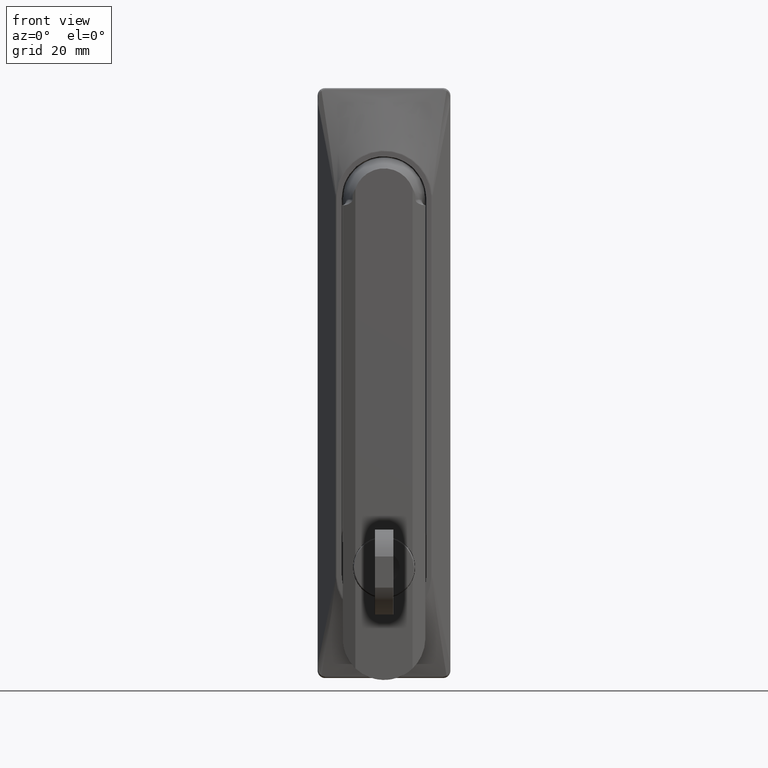
[diagram: clean part render]
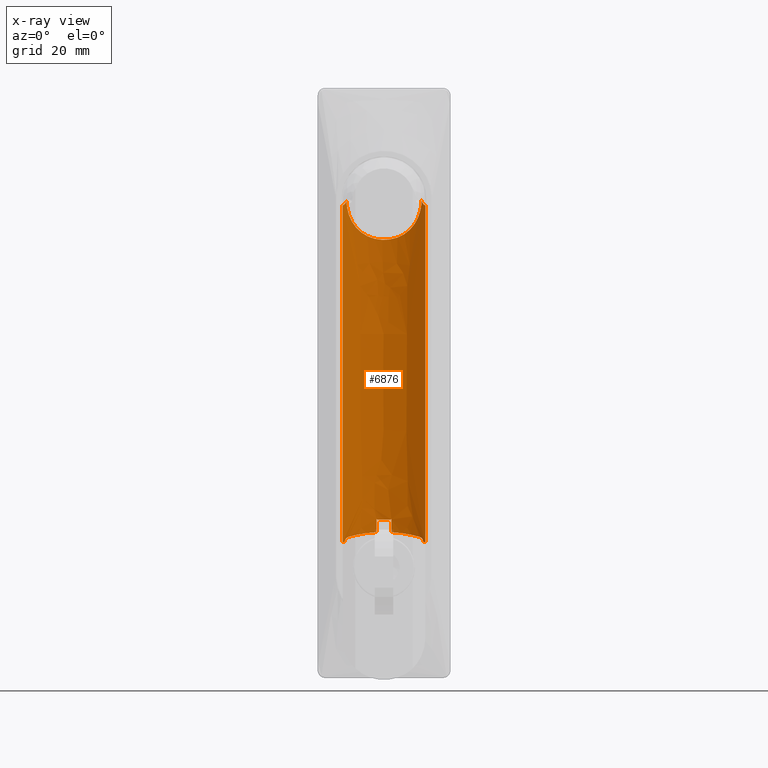
[diagram: x-ray — body ghosted, one internal face saturated and labeled with its STEP entity id]
A machine part, front view, then the same camera in x-ray: the body is ghosted and one INTERNAL B-rep face — a face not visible from any outside direction — is saturated and labeled: STEP entity #6876.
In plain terms, the highlighted face is a freeform B-spline surface patch.
Its self-contained STEP definition (entity closure, byte-faithful):
#5502=CARTESIAN_POINT('',(10.646672563056081,-8.406012683906479,-93.157983944105908));
#5503=VERTEX_POINT('',#5502);
#5517=CARTESIAN_POINT('',(11.209949728346800,-9.000000427477080,-93.157983944105908));
#5518=VERTEX_POINT('',#5517);
#5519=CARTESIAN_POINT('',(10.646672563056100,-8.406012683906461,-93.157983944105908));
#5520=CARTESIAN_POINT('',(10.936382416614419,-8.695352588670811,-93.157983944105908));
#5521=CARTESIAN_POINT('',(11.209949728346819,-9.000000427477062,-93.157983944105908));
#5529=(BOUNDED_CURVE()B_SPLINE_CURVE(2,(#5519,#5520,#5521),.UNSPECIFIED.,.F.,.U.)CURVE()GEOMETRIC_REPRESENTATION_ITEM()QUASI_UNIFORM_CURVE()RATIONAL_B_SPLINE_CURVE((1.0,0.999630921800948,1.0))REPRESENTATION_ITEM(''));
#5530=EDGE_CURVE('',#5503,#5518,#5529,.T.);
#5687=CARTESIAN_POINT('',(2.0,-4.133337162966836,-86.973774293476396));
#5688=VERTEX_POINT('',#5687);
#5689=CARTESIAN_POINT('',(2.0,-4.133337162966815,-90.456228789069797));
#5690=VERTEX_POINT('',#5689);
#5691=CARTESIAN_POINT('',(2.0,-4.133337162966836,-86.973774293476396));
#5692=CARTESIAN_POINT('',(2.0,-4.133337162966815,-90.456228789069797));
#5693=QUASI_UNIFORM_CURVE('',1,(#5691,#5692),.UNSPECIFIED.,.F.,.U.);
#5694=EDGE_CURVE('',#5688,#5690,#5693,.T.);
#5734=CARTESIAN_POINT('',(-2.0,-4.133337162966840,-86.973774293476396));
#5735=VERTEX_POINT('',#5734);
#5741=CARTESIAN_POINT('',(1.999999999999999,-4.133337162966783,-86.973774293476595));
#5742=CARTESIAN_POINT('',(-4.302157E-013,-3.865473339210489,-87.241638117232881));
#5743=CARTESIAN_POINT('',(-2.000000000000850,-4.133337162966907,-86.973774293476467));
#5751=(BOUNDED_CURVE()B_SPLINE_CURVE(2,(#5741,#5742,#5743),.UNSPECIFIED.,.F.,.U.)CURVE()GEOMETRIC_REPRESENTATION_ITEM()QUASI_UNIFORM_CURVE()RATIONAL_B_SPLINE_CURVE((1.0,0.991150006863682,1.0))REPRESENTATION_ITEM(''));
#5752=EDGE_CURVE('',#5688,#5735,#5751,.T.);
#5764=CARTESIAN_POINT('',(-2.0,-4.133337162966821,-90.456228789069797));
#5765=VERTEX_POINT('',#5764);
#5791=CARTESIAN_POINT('',(-2.0,-4.133337162966840,-86.973774293476396));
#5792=CARTESIAN_POINT('',(-2.0,-4.133337162966821,-90.456228789069797));
#5793=QUASI_UNIFORM_CURVE('',1,(#5791,#5792),.UNSPECIFIED.,.F.,.U.);
#5794=EDGE_CURVE('',#5735,#5765,#5793,.T.);
#6080=CARTESIAN_POINT('',(-9.572724272137590,-7.432026659646449,-91.709681736979405));
#6081=VERTEX_POINT('',#6080);
#6096=CARTESIAN_POINT('',(-10.646672563056081,-8.406012683906530,-93.157983944105908));
#6097=VERTEX_POINT('',#6096);
#6111=CARTESIAN_POINT('',(-9.572724272137590,-7.432026659646449,-91.709681736979405));
#6112=CARTESIAN_POINT('',(-9.642574257090919,-7.489499502132555,-91.729135692197488));
#6113=CARTESIAN_POINT('',(-9.710433140517905,-7.546388259054503,-91.753786123624906));
#6114=CARTESIAN_POINT('',(-9.842332302200081,-7.658873791282828,-91.813359810754463));
#6115=CARTESIAN_POINT('',(-9.906373329939012,-7.714472331615069,-91.848278350748274));
#6116=CARTESIAN_POINT('',(-9.999522073712981,-7.796666565583481,-91.908881642522118));
#6117=CARTESIAN_POINT('',(-10.030173907579369,-7.823943530006475,-91.930535704242374));
#6118=CARTESIAN_POINT('',(-10.089783217576230,-7.877410777775689,-91.976234856918623));
#6119=CARTESIAN_POINT('',(-10.118793690891300,-7.903646413156397,-92.000303206796119));
#6120=CARTESIAN_POINT('',(-10.203427760031699,-7.980757515101103,-92.076270198849954));
#6121=CARTESIAN_POINT('',(-10.256674767532390,-8.030057386345881,-92.131892480882570));
#6122=CARTESIAN_POINT('',(-10.331399881034990,-8.100138130270416,-92.223797801952202));
#6123=CARTESIAN_POINT('',(-10.355446073112820,-8.122849134587794,-92.255853321070035));
#6124=CARTESIAN_POINT('',(-10.401675487685971,-8.166780419150163,-92.323112235518181));
#6125=CARTESIAN_POINT('',(-10.423629782048961,-8.187783400012469,-92.357997553978478));
#6126=CARTESIAN_POINT('',(-10.485472183504751,-8.247265463385306,-92.465953898360610));
#6127=CARTESIAN_POINT('',(-10.521571479999441,-8.282437570625040,-92.542546947527285));
#6128=CARTESIAN_POINT('',(-10.566902126400670,-8.326914998461550,-92.665654549582726));
#6129=CARTESIAN_POINT('',(-10.580557182295919,-8.340376017556942,-92.708242181311093));
#6130=CARTESIAN_POINT('',(-10.604056409819570,-8.363607669040180,-92.794448663172872));
#6131=CARTESIAN_POINT('',(-10.623922246929830,-8.383322264847687,-92.882089224307848));
#6132=CARTESIAN_POINT('',(-10.636255088356060,-8.395617052452129,-92.972728574912708));
#6133=CARTESIAN_POINT('',(-10.644572404670059,-8.403914002445362,-93.064974969852685));
#6134=CARTESIAN_POINT('',(-10.646672563056100,-8.406012683906427,-93.111428666005395));
#6135=CARTESIAN_POINT('',(-10.646672563056100,-8.406012683906431,-93.157983944105908));
#6136=B_SPLINE_CURVE_WITH_KNOTS('',3,(#6111,#6112,#6113,#6114,#6115,#6116,#6117,#6118,#6119,#6120,#6121,#6122,#6123,#6124,#6125,#6126,#6127,#6128,#6129,#6130,#6131,#6132,#6133,#6134,#6135),.UNSPECIFIED.,.F.,.U.,(4,2,2,2,2,2,2,2,2,2,1,2,4),(0.0,0.125000000000007,0.250000000000014,0.312500000000014,0.375000000000013,0.500000000000002,0.562500000000002,0.625000000000002,0.750000000000002,0.812500000000001,0.875000000000001,0.937500000000000,1.0),.UNSPECIFIED.);
#6137=EDGE_CURVE('',#6081,#6097,#6136,.T.);
#6223=CARTESIAN_POINT('',(-2.0,-4.133337162966821,-90.456228789069797));
#6224=CARTESIAN_POINT('',(-2.703640394317769,-4.227577066252477,-90.495819909426658));
#6225=CARTESIAN_POINT('',(-3.391156151284350,-4.370010359103173,-90.555419516459651));
#6226=CARTESIAN_POINT('',(-4.735819738944318,-4.746632434937009,-90.709857278432793));
#6227=CARTESIAN_POINT('',(-5.392961353779724,-4.980834724859495,-90.804715643479184));
#6228=CARTESIAN_POINT('',(-6.195505255898476,-5.331680391506422,-90.942641752571689));
#6229=CARTESIAN_POINT('',(-6.355097836841869,-5.404797984662142,-90.971205592779953));
#6230=CARTESIAN_POINT('',(-6.670227840667325,-5.555860858664102,-91.029784332026750));
#6231=CARTESIAN_POINT('',(-6.826042903722263,-5.633923150341003,-91.059845486963113));
#6232=CARTESIAN_POINT('',(-7.288338426635933,-5.875604770513139,-91.152171357329721));
#6233=CARTESIAN_POINT('',(-7.589675818725584,-6.046708517862578,-91.216577713072141));
#6234=CARTESIAN_POINT('',(-8.473659685977959,-6.589572054599632,-91.417024354244518));
#6235=CARTESIAN_POINT('',(-9.036378061242418,-6.990718886747199,-91.560303678056584));
#6236=CARTESIAN_POINT('',(-9.572724272137592,-7.432026659646450,-91.709681736979405));
#6237=B_SPLINE_CURVE_WITH_KNOTS('',3,(#6223,#6224,#6225,#6226,#6227,#6228,#6229,#6230,#6231,#6232,#6233,#6234,#6235,#6236),.UNSPECIFIED.,.F.,.U.,(4,2,2,2,2,2,4),(0.0,0.250000000000000,0.500000000000001,0.562500000000000,0.625000000000000,0.750000000000000,1.0),.UNSPECIFIED.);
#6238=EDGE_CURVE('',#5765,#6081,#6237,.T.);
#6358=CARTESIAN_POINT('',(9.572724272137659,-7.432026659646461,-91.709681736979405));
#6359=VERTEX_POINT('',#6358);
#6373=CARTESIAN_POINT('',(10.646672563056081,-8.406012683906479,-93.157983944105908));
#6374=CARTESIAN_POINT('',(10.646672563056081,-8.406012683906479,-93.111428666005438));
#6375=CARTESIAN_POINT('',(10.644572404670070,-8.403914002445310,-93.064974969852727));
#6376=CARTESIAN_POINT('',(10.636255088356060,-8.395617052452074,-92.972728574912736));
#6377=CARTESIAN_POINT('',(10.623923071642659,-8.383323010933399,-92.882088909224635));
#6378=CARTESIAN_POINT('',(10.604056409819581,-8.363607669040132,-92.794448663172886));
#6379=CARTESIAN_POINT('',(10.580557182295919,-8.340376017556901,-92.708242181311135));
#6380=CARTESIAN_POINT('',(10.566902126400681,-8.326914998461506,-92.665654549582726));
#6381=CARTESIAN_POINT('',(10.521571479999460,-8.282437570625000,-92.542546947527327));
#6382=CARTESIAN_POINT('',(10.485472183504770,-8.247265463385267,-92.465953898360638));
#6383=CARTESIAN_POINT('',(10.423629782048989,-8.187783400012435,-92.357997553978521));
#6384=CARTESIAN_POINT('',(10.401675487685990,-8.166780419150127,-92.323112235518224));
#6385=CARTESIAN_POINT('',(10.355446073112841,-8.122849134587760,-92.255853321070077));
#6386=CARTESIAN_POINT('',(10.331399881035020,-8.100138130270388,-92.223797801952230));
#6387=CARTESIAN_POINT('',(10.256674767532431,-8.030057386345863,-92.131892480882613));
#6388=CARTESIAN_POINT('',(10.203427760031730,-7.980757515101082,-92.076270198849997));
#6389=CARTESIAN_POINT('',(10.118793690891330,-7.903646413156382,-92.000303206796161));
#6390=CARTESIAN_POINT('',(10.089783217576260,-7.877410777775671,-91.976234856918651));
#6391=CARTESIAN_POINT('',(10.030173907579400,-7.823943530006458,-91.930535704242374));
#6392=CARTESIAN_POINT('',(9.999522073713035,-7.796666565583483,-91.908881642522189));
#6393=CARTESIAN_POINT('',(9.906373329939063,-7.714472331615070,-91.848278350748288));
#6394=CARTESIAN_POINT('',(9.842332302200134,-7.658873791282829,-91.813359810754477));
#6395=CARTESIAN_POINT('',(9.710433140517964,-7.546388259054504,-91.753786123624892));
#6396=CARTESIAN_POINT('',(9.642574257090983,-7.489499502132567,-91.729135692197488));
#6397=CARTESIAN_POINT('',(9.572724272137659,-7.432026659646461,-91.709681736979405));
#6398=B_SPLINE_CURVE_WITH_KNOTS('',3,(#6373,#6374,#6375,#6376,#6377,#6378,#6379,#6380,#6381,#6382,#6383,#6384,#6385,#6386,#6387,#6388,#6389,#6390,#6391,#6392,#6393,#6394,#6395,#6396,#6397),.UNSPECIFIED.,.F.,.U.,(4,2,1,2,2,2,2,2,2,2,2,2,4),(0.0,0.062500000000000,0.125000000000000,0.187500000000000,0.250000000000000,0.374999999999999,0.437499999999999,0.499999999999999,0.624999999999987,0.687499999999987,0.749999999999987,0.874999999999993,1.0),.UNSPECIFIED.);
#6399=EDGE_CURVE('',#5503,#6359,#6398,.T.);
#6483=CARTESIAN_POINT('',(9.572724272137659,-7.432026659646461,-91.709681736979405));
#6484=CARTESIAN_POINT('',(9.036364440395007,-6.990707679460303,-91.560299884507316));
#6485=CARTESIAN_POINT('',(8.474466840679277,-6.590238678604930,-91.417255412471206));
#6486=CARTESIAN_POINT('',(7.299619745454062,-5.868411959364593,-91.150758603773482));
#6487=CARTESIAN_POINT('',(6.686677054534134,-5.547054127436495,-91.027275345111860));
#6488=CARTESIAN_POINT('',(5.886640910903540,-5.196500017767828,-90.889507395827053));
#6489=CARTESIAN_POINT('',(5.724863290300300,-5.128932295473945,-90.862773709808181));
#6490=CARTESIAN_POINT('',(5.398108408585962,-4.999150169909987,-90.811130928384699));
#6491=CARTESIAN_POINT('',(5.233845791243836,-4.937216948128112,-90.786334035878909));
#6492=CARTESIAN_POINT('',(4.738410295741781,-4.760222292850448,-90.715110818373759));
#6493=CARTESIAN_POINT('',(4.404592762817313,-4.653954680357269,-90.671851433869350));
#6494=CARTESIAN_POINT('',(3.392512400810968,-4.370202910933956,-90.555503188143263));
#6495=CARTESIAN_POINT('',(2.703673578616160,-4.227581510688996,-90.495821776578595));
#6496=CARTESIAN_POINT('',(2.0,-4.133337162966815,-90.456228789069797));
#6497=B_SPLINE_CURVE_WITH_KNOTS('',3,(#6483,#6484,#6485,#6486,#6487,#6488,#6489,#6490,#6491,#6492,#6493,#6494,#6495,#6496),.UNSPECIFIED.,.F.,.U.,(4,2,2,2,2,2,4),(0.0,0.250000000000000,0.499999999999999,0.562499999999999,0.624999999999999,0.750000000000000,1.0),.UNSPECIFIED.);
#6498=EDGE_CURVE('',#6359,#5690,#6497,.T.);
#6662=CARTESIAN_POINT('',(11.612664090310471,-9.467373451290531,2.073085702420820));
#6663=CARTESIAN_POINT('',(11.612664090310471,-9.467373451290531,-95.538760685269082));
#6664=CARTESIAN_POINT('',(-0.395327387756724,5.059750933723072,2.073085702420818));
#6665=CARTESIAN_POINT('',(-0.395327387756724,5.059750933723072,-95.538760685269096));
#6666=CARTESIAN_POINT('',(-11.920919689936206,-9.852992754778125,2.073085702420820));
#6667=CARTESIAN_POINT('',(-11.920919689936206,-9.852992754778125,-95.538760685269096));
#6675=(BOUNDED_SURFACE()B_SPLINE_SURFACE(1,2,((#6662,#6664,#6666),(#6663,#6665,#6667)),.UNSPECIFIED.,.F.,.F.,.U.)B_SPLINE_SURFACE_WITH_KNOTS((2,2),(3,3),(0.0,97.611846387689909),(0.0,28.979008916120701),.UNSPECIFIED.)GEOMETRIC_REPRESENTATION_ITEM()RATIONAL_B_SPLINE_SURFACE(((1.0,0.623675646570501,0.997685121836646),(1.0,0.623675646570501,0.997685121836646)))REPRESENTATION_ITEM('')SURFACE());
#6676=ORIENTED_EDGE('',*,*,#6238,.T.);
#6677=ORIENTED_EDGE('',*,*,#6137,.T.);
#6678=CARTESIAN_POINT('',(-11.209949728346700,-9.000000427477039,-93.157983944105908));
#6679=VERTEX_POINT('',#6678);
#6680=CARTESIAN_POINT('',(-11.209949728346720,-9.000000427477021,-93.157983944105908));
#6681=CARTESIAN_POINT('',(-10.936382416614366,-8.695352588670815,-93.157983944105908));
#6682=CARTESIAN_POINT('',(-10.646672563056100,-8.406012683906516,-93.157983944105908));
#6690=(BOUNDED_CURVE()B_SPLINE_CURVE(2,(#6680,#6681,#6682),.UNSPECIFIED.,.F.,.U.)CURVE()GEOMETRIC_REPRESENTATION_ITEM()QUASI_UNIFORM_CURVE()RATIONAL_B_SPLINE_CURVE((1.0,0.999630921800948,1.0))REPRESENTATION_ITEM(''));
#6691=EDGE_CURVE('',#6679,#6097,#6690,.T.);
#6692=ORIENTED_EDGE('',*,*,#6691,.F.);
#6693=CARTESIAN_POINT('',(-11.209949728346700,-9.000000427477039,-1.773845323968180));
#6694=VERTEX_POINT('',#6693);
#6695=CARTESIAN_POINT('',(-11.209949728346700,-9.000000427477039,-1.773845323968180));
#6696=CARTESIAN_POINT('',(-11.209949728346700,-9.000000427477039,-93.157983944105908));
#6697=QUASI_UNIFORM_CURVE('',1,(#6695,#6696),.UNSPECIFIED.,.F.,.U.);
#6698=EDGE_CURVE('',#6694,#6679,#6697,.T.);
#6699=ORIENTED_EDGE('',*,*,#6698,.F.);
#6700=CARTESIAN_POINT('',(-10.213197462803080,-7.990020771635259,-0.249623313348127));
#6701=VERTEX_POINT('',#6700);
#6702=CARTESIAN_POINT('',(-11.209949728346700,-9.000000427477039,-1.773845323968165));
#6703=CARTESIAN_POINT('',(-11.145973268225900,-8.928755474317791,-1.763929298295399));
#6704=CARTESIAN_POINT('',(-11.082760652065661,-8.859726286831085,-1.746198112019820));
#6705=CARTESIAN_POINT('',(-10.989183940889530,-8.759346532791344,-1.708065160755375));
#6706=CARTESIAN_POINT('',(-10.958200692540210,-8.726416336632429,-1.693420261649388));
#6707=CARTESIAN_POINT('',(-10.896693507187150,-8.661617042088368,-1.660155496959001));
#6708=CARTESIAN_POINT('',(-10.866089991677130,-8.629665707491794,-1.641481196905272));
#6709=CARTESIAN_POINT('',(-10.775579456879189,-8.535972766705463,-1.579538944694423));
#6710=CARTESIAN_POINT('',(-10.718113094473170,-8.477562883934370,-1.531234348332210));
#6711=CARTESIAN_POINT('',(-10.636444957375440,-8.395738345197593,-1.448332555407889));
#6712=CARTESIAN_POINT('',(-10.609982077034211,-8.369433998430647,-1.418947639695348));
#6713=CARTESIAN_POINT('',(-10.558673684004980,-8.318785302919588,-1.356558026225817));
#6714=CARTESIAN_POINT('',(-10.533718300070481,-8.294334263988834,-1.323390674004218));
#6715=CARTESIAN_POINT('',(-10.462288005637770,-8.224791348632023,-1.219301847873401));
#6716=CARTESIAN_POINT('',(-10.419748195130230,-8.183981182531793,-1.144726636446185));
#6717=CARTESIAN_POINT('',(-10.363770530295531,-8.130748490068498,-1.025149026977836));
#6718=CARTESIAN_POINT('',(-10.346424193843641,-8.114343510111780,-0.983996052453700));
#6719=CARTESIAN_POINT('',(-10.314492523921800,-8.084265186389922,-0.899009764710892));
#6720=CARTESIAN_POINT('',(-10.299852786315260,-8.070541380470054,-0.854941800344795));
#6721=CARTESIAN_POINT('',(-10.261174091366980,-8.034395557223464,-0.721422090051105));
#6722=CARTESIAN_POINT('',(-10.242030670050490,-8.016663886809432,-0.630068753526359));
#6723=CARTESIAN_POINT('',(-10.217171846559429,-7.993673842296291,-0.442699664703146));
#6724=CARTESIAN_POINT('',(-10.211531214504751,-7.988484359853229,-0.346048137395576));
#6725=CARTESIAN_POINT('',(-10.213197462803160,-7.990020771635320,-0.249623313348119));
#6726=B_SPLINE_CURVE_WITH_KNOTS('',3,(#6702,#6703,#6704,#6705,#6706,#6707,#6708,#6709,#6710,#6711,#6712,#6713,#6714,#6715,#6716,#6717,#6718,#6719,#6720,#6721,#6722,#6723,#6724,#6725),.UNSPECIFIED.,.F.,.U.,(4,2,2,2,2,2,2,2,2,2,2,4),(0.0,0.124999999999999,0.187499999999998,0.249999999999997,0.374999999999995,0.437499999999995,0.499999999999995,0.624999999999995,0.687499999999996,0.749999999999996,0.874999999999998,1.0),.UNSPECIFIED.);
#6727=EDGE_CURVE('',#6694,#6701,#6726,.T.);
#6728=ORIENTED_EDGE('',*,*,#6727,.T.);
#6729=CARTESIAN_POINT('',(10.213197462803100,-7.990020771635221,-0.249623313348127));
#6730=VERTEX_POINT('',#6729);
#6731=CARTESIAN_POINT('',(-10.213197462803080,-7.990020771635259,-0.249623313348118));
#6732=CARTESIAN_POINT('',(-10.206920901843951,-7.984233289530835,-0.612844261081237));
#6733=CARTESIAN_POINT('',(-10.187015664532231,-7.965843207125153,-0.974279465295922));
#6734=CARTESIAN_POINT('',(-10.136654796179450,-7.919905513276421,-1.513785157444124));
#6735=CARTESIAN_POINT('',(-10.116403306450390,-7.901499814182911,-1.693456212256234));
#6736=CARTESIAN_POINT('',(-10.069101103122611,-7.858821149226103,-2.050616314051987));
#6737=CARTESIAN_POINT('',(-10.042123581522230,-7.834614457441998,-2.227644850405016));
#6738=CARTESIAN_POINT('',(-9.951293217932937,-7.753842507686148,-2.754199774664841));
#6739=CARTESIAN_POINT('',(-9.877574143408470,-7.689129114941595,-3.099204897455230));
#6740=CARTESIAN_POINT('',(-9.703429803726877,-7.540245213790403,-3.777564026535787));
#6741=CARTESIAN_POINT('',(-9.603003636103045,-7.456071553828002,-4.110917075534961));
#6742=CARTESIAN_POINT('',(-9.431297136004922,-7.316856171841778,-4.602296576713663));
#6743=CARTESIAN_POINT('',(-9.370542702751644,-7.268291534556746,-4.764645884967661));
#6744=CARTESIAN_POINT('',(-9.273930495590824,-7.192410278111018,-5.005995460145732));
#6745=CARTESIAN_POINT('',(-9.240812478339965,-7.166610822145564,-5.086082781802797));
#6746=CARTESIAN_POINT('',(-9.172708328557073,-7.114034946257568,-5.245529209699033));
#6747=CARTESIAN_POINT('',(-9.137677472890932,-7.087225032296168,-5.324982548156222));
#6748=CARTESIAN_POINT('',(-8.958634552170761,-6.951493280150961,-5.718494391036999));
#6749=CARTESIAN_POINT('',(-8.802591041194303,-6.837221263123244,-6.022341382129015));
#6750=CARTESIAN_POINT('',(-8.464261767180085,-6.600657238547376,-6.609142190836590));
#6751=CARTESIAN_POINT('',(-8.281976664205033,-6.478359564456189,-6.892094002932508));
#6752=CARTESIAN_POINT('',(-7.889778826571188,-6.228902564309504,-7.437546295860975));
#6753=CARTESIAN_POINT('',(-7.679871783041901,-6.101737437895772,-7.700048055854280));
#6754=CARTESIAN_POINT('',(-7.398825976676513,-5.941707434244964,-8.015314077291073));
#6755=CARTESIAN_POINT('',(-7.341681343518960,-5.909647967188924,-8.077722739016373));
#6756=CARTESIAN_POINT('',(-7.225475954503194,-5.845472675472960,-8.201242776150357));
#6757=CARTESIAN_POINT('',(-7.166372459233224,-5.813335543269140,-8.262392274982908));
#6758=CARTESIAN_POINT('',(-6.987182228583264,-5.717479383784992,-8.442831342763482));
#6759=CARTESIAN_POINT('',(-6.864899294033990,-5.654137462928967,-8.559461370084790));
#6760=CARTESIAN_POINT('',(-6.489524386798375,-5.466383105111432,-8.898626553647006));
#6761=CARTESIAN_POINT('',(-6.227925825150427,-5.344242929324430,-9.110464929525369));
#6762=CARTESIAN_POINT('',(-5.681276713469656,-5.109043601898585,-9.506312455668198));
#6763=CARTESIAN_POINT('',(-5.396231567151383,-4.995976358604765,-9.690324480462850));
#6764=CARTESIAN_POINT('',(-4.949997193479375,-4.835492193704438,-9.945305530861722));
#6765=CARTESIAN_POINT('',(-4.798135448716473,-4.783518173015650,-10.026785517625280));
#6766=CARTESIAN_POINT('',(-4.565469699089227,-4.708148682594020,-10.143638302475679));
#6767=CARTESIAN_POINT('',(-4.487101778613758,-4.683457637912766,-10.181694131596171));
#6768=CARTESIAN_POINT('',(-4.328701290313475,-4.634994372521451,-10.255992163448230));
#6769=CARTESIAN_POINT('',(-4.248632051600247,-4.611214688691619,-10.292244913751841));
#6770=CARTESIAN_POINT('',(-3.846962587619863,-4.495573466272250,-10.467669715352161));
#6771=CARTESIAN_POINT('',(-3.519161213374088,-4.412773889578442,-10.590465058699110));
#6772=CARTESIAN_POINT('',(-2.850672863265994,-4.268192421377408,-10.802224898071310));
#6773=CARTESIAN_POINT('',(-2.509987239456432,-4.206404139881678,-10.891190086911580));
#6774=CARTESIAN_POINT('',(-1.815366857483971,-4.105652136893037,-11.035163941476100));
#6775=CARTESIAN_POINT('',(-1.461436036705705,-4.066680367614582,-11.090181834927440));
#6776=CARTESIAN_POINT('',(-1.010211760157200,-4.033634251742911,-11.136707543616691));
#6777=CARTESIAN_POINT('',(-0.919774439851582,-4.027830564678993,-11.144867059394750));
#6778=CARTESIAN_POINT('',(-0.739289442063922,-4.017878184500758,-11.158848312845061));
#6779=CARTESIAN_POINT('',(-0.468791326867460,-4.005405915373212,-11.176349350043409));
#6780=CARTESIAN_POINT('',(-0.198973463106547,-4.000244164343680,-11.183575748258299));
#6781=CARTESIAN_POINT('',(0.339768523553690,-3.999550714295439,-11.184547126329120));
#6782=CARTESIAN_POINT('',(0.697740716186253,-4.011916549719884,-11.167268308527390));
#6783=CARTESIAN_POINT('',(1.232921115112969,-4.049467249821609,-11.114422598874080));
#6784=CARTESIAN_POINT('',(1.411017632513755,-4.065154190928721,-11.092307216662540));
#6785=CARTESIAN_POINT('',(1.677711931968172,-4.093436089971107,-11.052266721640841));
#6786=CARTESIAN_POINT('',(1.766534911728505,-4.103655482824456,-11.037774524070230));
#6787=CARTESIAN_POINT('',(1.944029288164253,-4.125679979998944,-11.006469996959209));
#6788=CARTESIAN_POINT('',(2.032822982652566,-4.137504402567796,-10.989629989224859));
#6789=CARTESIAN_POINT('',(2.473591411862965,-4.200178264904872,-10.900139343111290));
#6790=CARTESIAN_POINT('',(2.817711904491941,-4.261840650583902,-10.811427016846521));
#6791=CARTESIAN_POINT('',(3.489907602941192,-4.405738572704002,-10.600861230302840));
#6792=CARTESIAN_POINT('',(3.817978519660277,-4.487982663515508,-10.479000964512370));
#6793=CARTESIAN_POINT('',(4.298331646343065,-4.625197137682052,-10.271113372731911));
#6794=CARTESIAN_POINT('',(4.456486524439188,-4.673245269950827,-10.197624351643370));
#6795=CARTESIAN_POINT('',(4.690776571752147,-4.748593418998206,-10.080979816594210));
#6796=CARTESIAN_POINT('',(4.768452546424449,-4.774281002011785,-10.040988562304740));
#6797=CARTESIAN_POINT('',(4.921953743307643,-4.826415243776466,-9.959314746758832));
#6798=CARTESIAN_POINT('',(4.997878611361172,-4.852892609009960,-9.917585087894242));
#6799=CARTESIAN_POINT('',(5.373461176963499,-4.987197939144444,-9.704514358807030));
#6800=CARTESIAN_POINT('',(5.661027464643883,-5.100771568554313,-9.519946764334117));
#6801=CARTESIAN_POINT('',(6.211999779734341,-5.336978307553015,-9.122960939533551));
#6802=CARTESIAN_POINT('',(6.475399453217952,-5.459619931171003,-8.910538986606390));
#6803=CARTESIAN_POINT('',(6.853040839137880,-5.648066283254464,-8.570569726399159));
#6804=CARTESIAN_POINT('',(6.976045707777091,-5.711650041686923,-8.453643989144780));
#6805=CARTESIAN_POINT('',(7.216119137207924,-5.839829823844855,-8.212666527533918));
#6806=CARTESIAN_POINT('',(7.332332489686293,-5.903966037953896,-8.089478370343963));
#6807=CARTESIAN_POINT('',(7.670013266025590,-6.095898326050917,-7.711902797400220));
#6808=CARTESIAN_POINT('',(7.880548191066360,-6.223217713756645,-7.449523186092575));
#6809=CARTESIAN_POINT('',(8.274431351333545,-6.473381861880361,-6.903412472186322));
#6810=CARTESIAN_POINT('',(8.457775076575199,-6.596232585418268,-6.619680837971535));
#6811=CARTESIAN_POINT('',(8.713272373476526,-6.774715640821098,-6.177595869970837));
#6812=CARTESIAN_POINT('',(8.795179202062670,-6.833243490774690,-6.027481657432708));
#6813=CARTESIAN_POINT('',(8.913208259991382,-6.919265105073533,-5.798078368869538));
#6814=CARTESIAN_POINT('',(8.951793974822856,-6.947679967332301,-5.720803008403818));
#6815=CARTESIAN_POINT('',(9.027054470799040,-7.003636354456841,-5.565458493692000));
#6816=CARTESIAN_POINT('',(9.063738633366887,-7.031183768242461,-5.487378548237461));
#6817=CARTESIAN_POINT('',(9.242534355993529,-7.166672529300941,-5.094949385590075));
#6818=CARTESIAN_POINT('',(9.370811304922237,-7.267868256006214,-4.774524473603741));
#6819=CARTESIAN_POINT('',(9.599867115523029,-7.453477484946943,-4.120735995991877));
#6820=CARTESIAN_POINT('',(9.700643823006322,-7.537894393341826,-3.787372623296637));
#6821=CARTESIAN_POINT('',(9.875728440818159,-7.687520909581211,-3.107411197721323));
#6822=CARTESIAN_POINT('',(9.950039216897539,-7.752734318971020,-2.760815017845463));
#6823=CARTESIAN_POINT('',(10.041684532027910,-7.834220614766871,-2.230511572828139));
#6824=CARTESIAN_POINT('',(10.068875750731610,-7.858618451209050,-2.052194912008502));
#6825=CARTESIAN_POINT('',(10.116303491606850,-7.901409132616828,-1.694331982273248));
#6826=CARTESIAN_POINT('',(10.136559279473831,-7.919818589029601,-1.514699866037741));
#6827=CARTESIAN_POINT('',(10.186986762216980,-7.965816438084122,-0.974805465844227));
#6828=CARTESIAN_POINT('',(10.206916334707749,-7.984229078272553,-0.613108558608691));
#6829=CARTESIAN_POINT('',(10.213197462803100,-7.990020771635221,-0.249623313348121));
#6830=B_SPLINE_CURVE_WITH_KNOTS('',3,(#6731,#6732,#6733,#6734,#6735,#6736,#6737,#6738,#6739,#6740,#6741,#6742,#6743,#6744,#6745,#6746,#6747,#6748,#6749,#6750,#6751,#6752,#6753,#6754,#6755,#6756,#6757,#6758,#6759,#6760,#6761,#6762,#6763,#6764,#6765,#6766,#6767,#6768,#6769,#6770,#6771,#6772,#6773,#6774,#6775,#6776,#6777,#6778,#6779,#6780,#6781,#6782,#6783,#6784,#6785,#6786,#6787,#6788,#6789,#6790,#6791,#6792,#6793,#6794,#6795,#6796,#6797,#6798,#6799,#6800,#6801,#6802,#6803,#6804,#6805,#6806,#6807,#6808,#6809,#6810,#6811,#6812,#6813,#6814,#6815,#6816,#6817,#6818,#6819,#6820,#6821,#6822,#6823,#6824,#6825,#6826,#6827,#6828,#6829),.UNSPECIFIED.,.F.,.U.,(4,2,2,2,2,2,2,2,2,2,2,2,2,2,2,2,2,2,2,2,2,2,2,2,1,2,2,2,2,2,2,2,2,2,2,2,2,2,2,2,2,2,2,2,2,2,2,2,2,4),(0.0,0.031250000000000,0.046875000000000,0.062500000000001,0.093750000000001,0.125000000000001,0.140625000000001,0.148437500000001,0.156250000000001,0.187500000000001,0.218750000000001,0.250000000000002,0.257812500000002,0.265625000000002,0.281250000000002,0.312500000000002,0.343750000000002,0.359375000000002,0.367187500000002,0.375000000000002,0.406250000000002,0.437500000000002,0.468750000000002,0.476562500000002,0.484375000000002,0.500000000000002,0.531250000000002,0.546875000000002,0.554687500000002,0.562500000000002,0.593750000000002,0.625000000000002,0.640625000000002,0.648437500000002,0.656250000000002,0.687500000000002,0.718750000000002,0.734375000000002,0.750000000000001,0.781250000000001,0.812500000000001,0.828125000000001,0.835937500000001,0.843750000000001,0.875000000000001,0.906250000000001,0.937500000000000,0.953125000000000,0.968750000000000,1.0),.UNSPECIFIED.);
#6831=EDGE_CURVE('',#6701,#6730,#6830,.T.);
#6832=ORIENTED_EDGE('',*,*,#6831,.T.);
#6833=CARTESIAN_POINT('',(11.209949728346800,-9.000000427477080,-1.773845323968180));
#6834=VERTEX_POINT('',#6833);
#6835=CARTESIAN_POINT('',(10.213197462803100,-7.990020771635221,-0.249623313348127));
#6836=CARTESIAN_POINT('',(10.211533945182170,-7.988486877752210,-0.345890114671601));
#6837=CARTESIAN_POINT('',(10.217021384284230,-7.993535298193545,-0.440720924363914));
#6838=CARTESIAN_POINT('',(10.235454571308420,-8.010581857891030,-0.580910107667730));
#6839=CARTESIAN_POINT('',(10.243310575142219,-8.017855603207517,-0.627294513166539));
#6840=CARTESIAN_POINT('',(10.262489544266920,-8.035667950486532,-0.719359730833848));
#6841=CARTESIAN_POINT('',(10.273856387693231,-8.046247947794260,-0.765112305323490));
#6842=CARTESIAN_POINT('',(10.312360064966910,-8.082228452185252,-0.898293130087922));
#6843=CARTESIAN_POINT('',(10.344043298003021,-8.111995213948942,-0.982709796993081));
#6844=CARTESIAN_POINT('',(10.400126207501129,-8.165318230305804,-1.102954204094367));
#6845=CARTESIAN_POINT('',(10.420358896817961,-8.184647222870309,-1.142140394025037));
#6846=CARTESIAN_POINT('',(10.463213735955920,-8.225847755995444,-1.217438355037854));
#6847=CARTESIAN_POINT('',(10.485733053277951,-8.247619635358591,-1.253409848154481));
#6848=CARTESIAN_POINT('',(10.556363030012641,-8.316375328079156,-1.356499169725139));
#6849=CARTESIAN_POINT('',(10.607522099700359,-8.366771940589938,-1.418829527548195));
#6850=CARTESIAN_POINT('',(10.690042539041510,-8.449432830397072,-1.502809214442827));
#6851=CARTESIAN_POINT('',(10.718425169250850,-8.478079638593906,-1.529085284207013));
#6852=CARTESIAN_POINT('',(10.775986999448040,-8.536667884472122,-1.577531310771376));
#6853=CARTESIAN_POINT('',(10.834587505380821,-8.596792546311304,-1.622123960670656));
#6854=CARTESIAN_POINT('',(10.895126678061560,-8.659976520944367,-1.659233455563657));
#6855=CARTESIAN_POINT('',(10.956594907662740,-8.724714944646832,-1.692622711307658));
#6856=CARTESIAN_POINT('',(10.987878145770230,-8.757952195175832,-1.707490712018634));
#6857=CARTESIAN_POINT('',(11.082512536019170,-8.859447639945726,-1.746179775665922));
#6858=CARTESIAN_POINT('',(11.146050726720020,-8.928841733025553,-1.763941303967705));
#6859=CARTESIAN_POINT('',(11.209949728346819,-9.000000427477049,-1.773845323968165));
#6860=B_SPLINE_CURVE_WITH_KNOTS('',3,(#6835,#6836,#6837,#6838,#6839,#6840,#6841,#6842,#6843,#6844,#6845,#6846,#6847,#6848,#6849,#6850,#6851,#6852,#6853,#6854,#6855,#6856,#6857,#6858,#6859),.UNSPECIFIED.,.F.,.U.,(4,2,2,2,2,2,2,2,2,1,2,2,4),(0.0,0.125000000000000,0.187499999999999,0.249999999999999,0.374999999999998,0.437499999999998,0.499999999999998,0.624999999999997,0.687499999999997,0.749999999999997,0.812499999999997,0.874999999999997,1.0),.UNSPECIFIED.);
#6861=EDGE_CURVE('',#6730,#6834,#6860,.T.);
#6862=ORIENTED_EDGE('',*,*,#6861,.T.);
#6863=CARTESIAN_POINT('',(11.209949728346800,-9.000000427477080,-1.773845323968180));
#6864=CARTESIAN_POINT('',(11.209949728346800,-9.000000427477080,-93.157983944105908));
#6865=QUASI_UNIFORM_CURVE('',1,(#6863,#6864),.UNSPECIFIED.,.F.,.U.);
#6866=EDGE_CURVE('',#6834,#5518,#6865,.T.);
#6867=ORIENTED_EDGE('',*,*,#6866,.T.);
#6868=ORIENTED_EDGE('',*,*,#5530,.F.);
#6869=ORIENTED_EDGE('',*,*,#6399,.T.);
#6870=ORIENTED_EDGE('',*,*,#6498,.T.);
#6871=ORIENTED_EDGE('',*,*,#5694,.F.);
#6872=ORIENTED_EDGE('',*,*,#5752,.T.);
#6873=ORIENTED_EDGE('',*,*,#5794,.T.);
#6874=EDGE_LOOP('',(#6676,#6677,#6692,#6699,#6728,#6832,#6862,#6867,#6868,#6869,#6870,#6871,#6872,#6873));
#6875=FACE_OUTER_BOUND('',#6874,.T.);
#6876=ADVANCED_FACE('',(#6875),#6675,.T.);